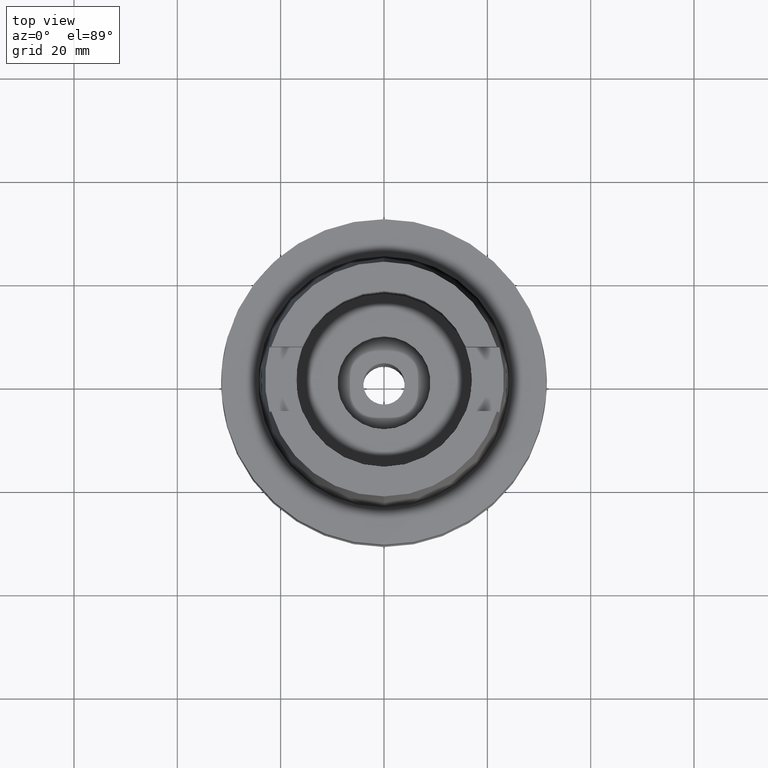
[diagram: clean part render]
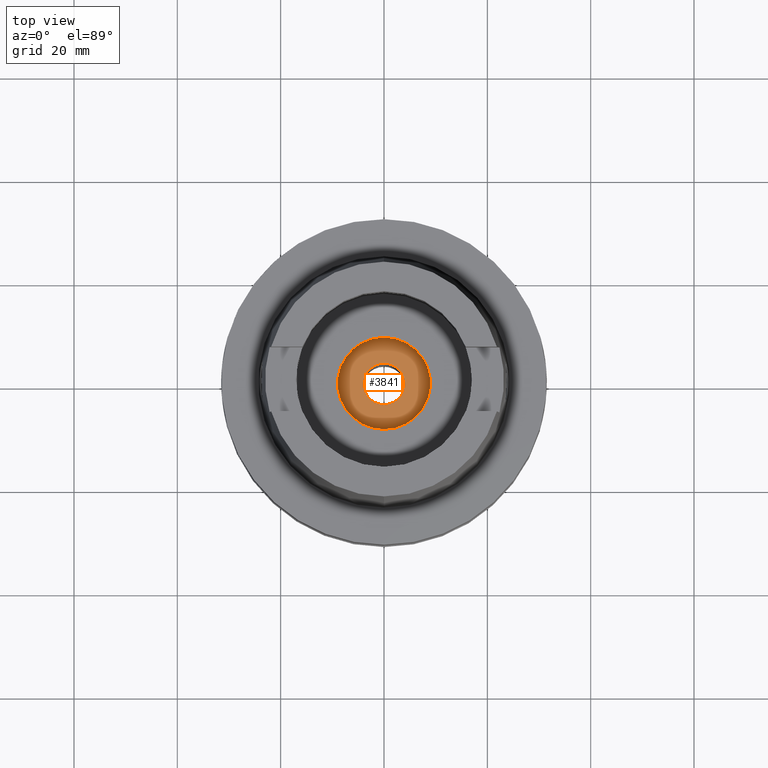
[diagram: same view with one face highlighted and labeled with its STEP entity id]
A machine part, top view. The second image highlights one B-rep face of the part: STEP entity #3841.
In plain terms, the highlighted planar face has unit normal (0, 0, -1).
Its self-contained STEP definition (entity closure, byte-faithful):
#1890=CARTESIAN_POINT('',(0.E0,1.683889348828E-14,-2.195E1));
#1891=DIRECTION('',(0.E0,0.E0,-1.E0));
#1892=DIRECTION('',(0.E0,-1.E0,0.E0));
#1893=AXIS2_PLACEMENT_3D('',#1890,#1891,#1892);
#1898=CARTESIAN_POINT('',(0.E0,1.683889348828E-14,-2.195E1));
#1899=DIRECTION('',(0.E0,0.E0,-1.E0));
#1900=DIRECTION('',(0.E0,1.E0,0.E0));
#1901=AXIS2_PLACEMENT_3D('',#1898,#1899,#1900);
#1906=CARTESIAN_POINT('',(0.E0,1.683889348828E-14,-2.195E1));
#1907=DIRECTION('',(0.E0,0.E0,1.E0));
#1908=DIRECTION('',(0.E0,-1.E0,0.E0));
#1909=AXIS2_PLACEMENT_3D('',#1906,#1907,#1908);
#1914=CARTESIAN_POINT('',(0.E0,1.683889348828E-14,-2.195E1));
#1915=DIRECTION('',(0.E0,0.E0,1.E0));
#1916=DIRECTION('',(0.E0,1.E0,0.E0));
#1917=AXIS2_PLACEMENT_3D('',#1914,#1915,#1916);
#2361=CARTESIAN_POINT('',(0.E0,4.E0,-2.195E1));
#2362=VERTEX_POINT('',#2361);
#2363=CARTESIAN_POINT('',(0.E0,-4.E0,-2.195E1));
#2364=VERTEX_POINT('',#2363);
#2365=CARTESIAN_POINT('',(0.E0,-9.E0,-2.195E1));
#2366=CARTESIAN_POINT('',(0.E0,9.E0,-2.195E1));
#2367=VERTEX_POINT('',#2365);
#2368=VERTEX_POINT('',#2366);
#3826=CARTESIAN_POINT('',(0.E0,0.E0,-2.195E1));
#3827=DIRECTION('',(0.E0,0.E0,-1.E0));
#3828=DIRECTION('',(0.E0,-1.E0,0.E0));
#3829=AXIS2_PLACEMENT_3D('',#3826,#3827,#3828);
#3830=PLANE('',#3829);
#3832=ORIENTED_EDGE('',*,*,#3831,.T.);
#3834=ORIENTED_EDGE('',*,*,#3833,.T.);
#3835=EDGE_LOOP('',(#3832,#3834));
#3836=FACE_OUTER_BOUND('',#3835,.F.);
#3837=ORIENTED_EDGE('',*,*,#3819,.T.);
#3838=ORIENTED_EDGE('',*,*,#3808,.T.);
#3839=EDGE_LOOP('',(#3837,#3838));
#3840=FACE_BOUND('',#3839,.F.);
#1894=CIRCLE('',#1893,9.E0);
#1902=CIRCLE('',#1901,9.E0);
#1910=CIRCLE('',#1909,4.E0);
#1918=CIRCLE('',#1917,4.E0);
#3808=EDGE_CURVE('',#2362,#2364,#1918,.T.);
#3819=EDGE_CURVE('',#2364,#2362,#1910,.T.);
#3831=EDGE_CURVE('',#2367,#2368,#1894,.T.);
#3833=EDGE_CURVE('',#2368,#2367,#1902,.T.);
#3841=ADVANCED_FACE('',(#3836,#3840),#3830,.F.);